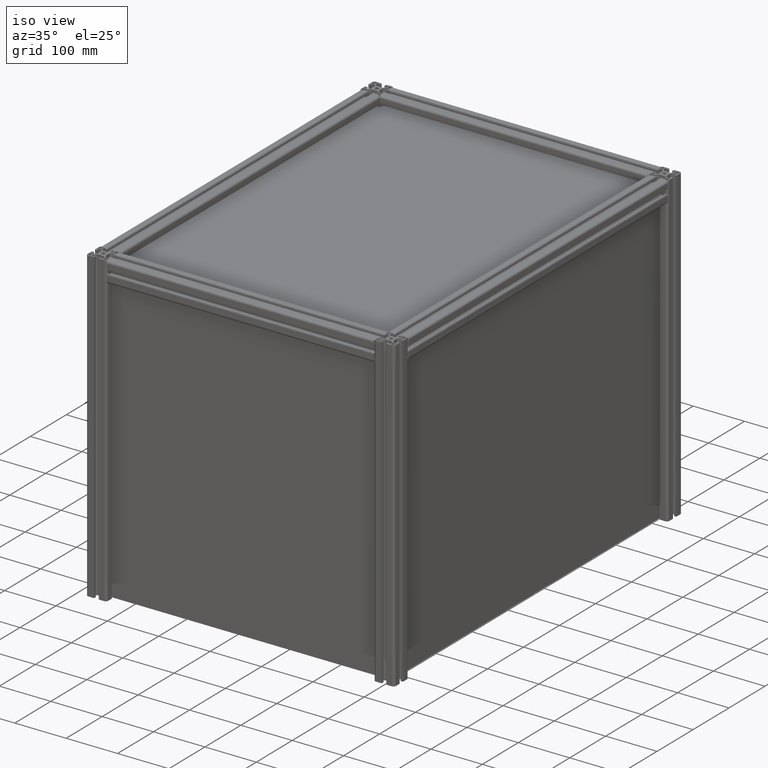
[diagram: clean part render]
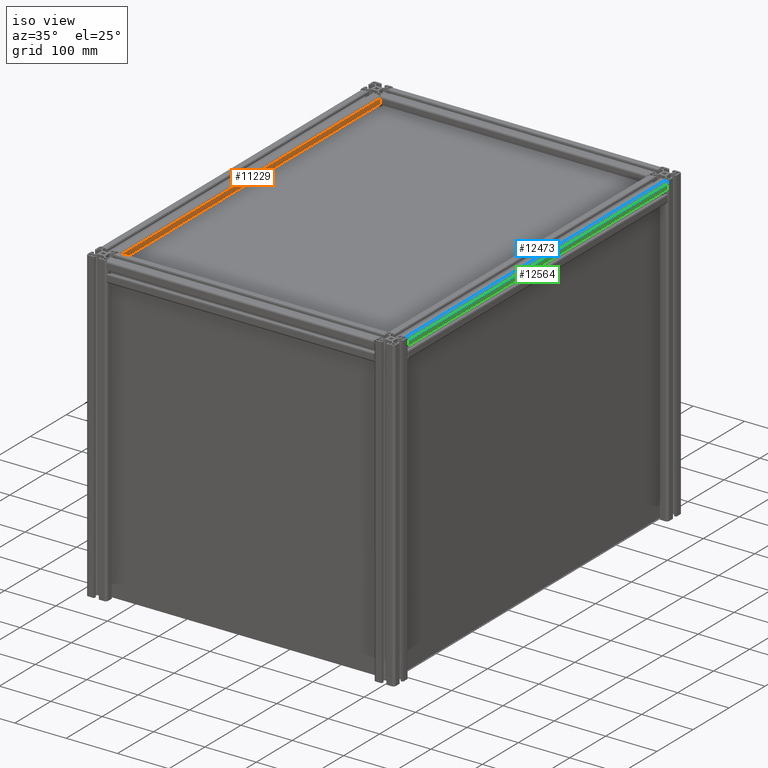
[diagram: same view with three faces highlighted in distinct colors, each labeled with its STEP entity id]
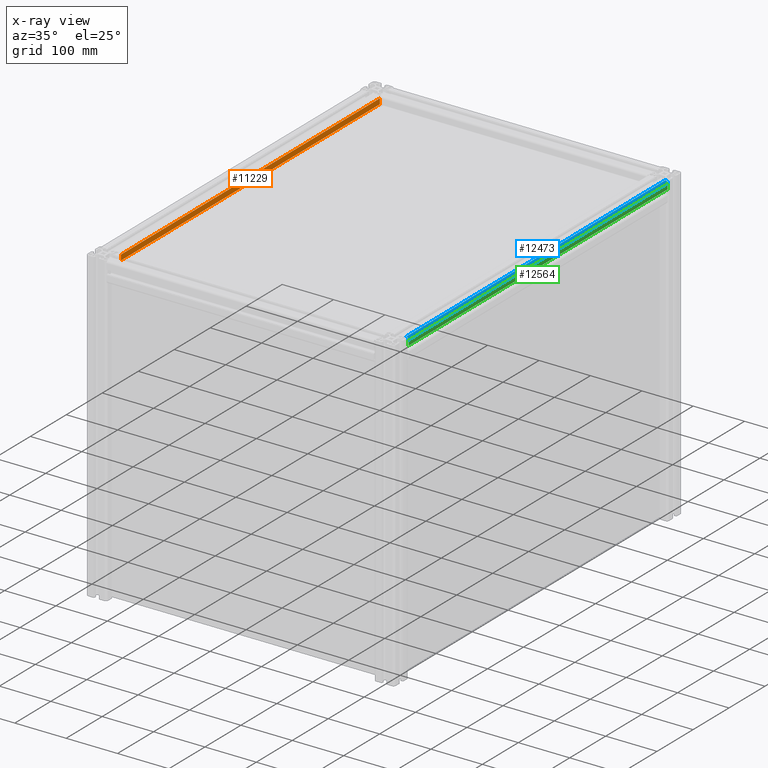
[diagram: x-ray of the same camera — body ghosted, the three highlighted faces saturated]
A machine part, iso view with three faces highlighted in distinct colors.
The next image is the same camera in x-ray (body ghosted, the three faces saturated) — at least one of them is partly hidden behind the body in this view.
Their STEP definitions:

[orange] entity #11229 — the highlighted planar face has unit normal (-1, -0, 0).
#1404 = EDGE_CURVE ( 'NONE', #4819, #8894, #10510, .T. ) ;
#1636 = CARTESIAN_POINT ( 'NONE',  ( 15.50000000000000000, -19.99999999999818101, 0.0000000000000000000 ) ) ;
#1683 = EDGE_CURVE ( 'NONE', #8475, #4819, #10493, .T. ) ;
#1687 = DIRECTION ( 'NONE',  ( 1.000000000000000000, 0.0000000000000000000, -0.0000000000000000000 ) ) ;
#1766 = CARTESIAN_POINT ( 'NONE',  ( 5.100000000000363798, -19.99999999999818101, 0.0000000000000000000 ) ) ;
#1852 = ORIENTED_EDGE ( 'NONE', *, *, #1404, .F. ) ;
#2353 = VECTOR ( 'NONE', #13817, 1000.000000000000000 ) ;
#2713 = PLANE ( 'NONE',  #3484 ) ;
#3182 = CARTESIAN_POINT ( 'NONE',  ( 5.100000000000364686, -19.99999999999818101, 0.0000000000000000000 ) ) ;
#3477 = CARTESIAN_POINT ( 'NONE',  ( 5.100000000000364686, -19.99999999999818456, 720.0000000000000000 ) ) ;
#3484 = AXIS2_PLACEMENT_3D ( 'NONE', #6431, #4820, #13788 ) ;
#3870 = CARTESIAN_POINT ( 'NONE',  ( 15.50000000000000000, -19.99999999999818101, 720.0000000000000000 ) ) ;
#4346 = DIRECTION ( 'NONE',  ( 1.000000000000000000, 0.0000000000000000000, -0.0000000000000000000 ) ) ;
#4819 = VERTEX_POINT ( 'NONE', #3477 ) ;
#4820 = DIRECTION ( 'NONE',  ( 0.0000000000000000000, 1.000000000000000000, 0.0000000000000000000 ) ) ;
#5358 = VERTEX_POINT ( 'NONE', #1636 ) ;
#5397 = VECTOR ( 'NONE', #7648, 1000.000000000000000 ) ;
#6431 = CARTESIAN_POINT ( 'NONE',  ( 5.100000000000363798, -19.99999999999818101, 720.0000000000000000 ) ) ;
#7094 = ORIENTED_EDGE ( 'NONE', *, *, #10478, .T. ) ;
#7216 = VECTOR ( 'NONE', #4346, 1000.000000000000000 ) ;
#7648 = DIRECTION ( 'NONE',  ( 0.0000000000000000000, -0.0000000000000000000, 1.000000000000000000 ) ) ;
#8117 = VECTOR ( 'NONE', #1687, 1000.000000000000000 ) ;
#8475 = VERTEX_POINT ( 'NONE', #3182 ) ;
#8852 = FACE_OUTER_BOUND ( 'NONE', #13148, .T. ) ;
#8894 = VERTEX_POINT ( 'NONE', #10539 ) ;
#8936 = CARTESIAN_POINT ( 'NONE',  ( 5.100000000000364686, -19.99999999999818101, 720.0000000000000000 ) ) ;
#10478 = EDGE_CURVE ( 'NONE', #8475, #5358, #13011, .T. ) ;
#10493 = LINE ( 'NONE', #8936, #5397 ) ;
#10510 = LINE ( 'NONE', #15437, #7216 ) ;
#10539 = CARTESIAN_POINT ( 'NONE',  ( 15.50000000000000000, -19.99999999999818456, 720.0000000000000000 ) ) ;
#11229 = ADVANCED_FACE ( 'NONE', ( #8852 ), #2713, .F. ) ;
#12996 = ORIENTED_EDGE ( 'NONE', *, *, #15223, .F. ) ;
#13011 = LINE ( 'NONE', #1766, #8117 ) ;
#13148 = EDGE_LOOP ( 'NONE', ( #1852, #13627, #7094, #12996 ) ) ;
#13627 = ORIENTED_EDGE ( 'NONE', *, *, #1683, .F. ) ;
#13788 = DIRECTION ( 'NONE',  ( 0.0000000000000000000, -0.0000000000000000000, 1.000000000000000000 ) ) ;
#13817 = DIRECTION ( 'NONE',  ( -0.0000000000000000000, -0.0000000000000000000, -1.000000000000000000 ) ) ;
#14956 = LINE ( 'NONE', #3870, #2353 ) ;
#15223 = EDGE_CURVE ( 'NONE', #8894, #5358, #14956, .T. ) ;
#15437 = CARTESIAN_POINT ( 'NONE',  ( -9.799999999999270628, -19.99999999999818456, 720.0000000000000000 ) ) ;

[blue] entity #12473 — the highlighted cylindrical surface (edge-blend (fillet) strip) has radius 4.5 mm, axis along (-0, -1, -0).
#8 = VERTEX_POINT ( 'NONE', #8706 ) ;
#1118 = DIRECTION ( 'NONE',  ( -1.000000000000000000, 0.0000000000000000000, 0.0000000000000000000 ) ) ;
#1368 = CIRCLE ( 'NONE', #13005, 4.500000000000000888 ) ;
#1919 = EDGE_LOOP ( 'NONE', ( #13986, #10423, #2729, #2842 ) ) ;
#2054 = LINE ( 'NONE', #3197, #3390 ) ;
#2729 = ORIENTED_EDGE ( 'NONE', *, *, #9349, .F. ) ;
#2842 = ORIENTED_EDGE ( 'NONE', *, *, #6849, .T. ) ;
#3197 = CARTESIAN_POINT ( 'NONE',  ( 20.00000000000000000, 15.50000000000181899, 720.0000000000000000 ) ) ;
#3378 = DIRECTION ( 'NONE',  ( -1.000000000000000000, 0.0000000000000000000, 0.0000000000000000000 ) ) ;
#3390 = VECTOR ( 'NONE', #9431, 1000.000000000000000 ) ;
#3425 = AXIS2_PLACEMENT_3D ( 'NONE', #8743, #9891, #6326 ) ;
#3444 = EDGE_CURVE ( 'NONE', #8, #15094, #10788, .T. ) ;
#3724 = CARTESIAN_POINT ( 'NONE',  ( 20.00000000000000000, 15.50000000000182077, 0.0000000000000000000 ) ) ;
#5527 = AXIS2_PLACEMENT_3D ( 'NONE', #10931, #13424, #1118 ) ;
#5827 = CARTESIAN_POINT ( 'NONE',  ( 15.50000000000000000, 20.00000000000181899, 720.0000000000000000 ) ) ;
#6326 = DIRECTION ( 'NONE',  ( -1.000000000000000000, 0.0000000000000000000, 0.0000000000000000000 ) ) ;
#6849 = EDGE_CURVE ( 'NONE', #11422, #12550, #2054, .T. ) ;
#6994 = CARTESIAN_POINT ( 'NONE',  ( 20.00000000000000000, 15.50000000000181899, 720.0000000000000000 ) ) ;
#7205 = FACE_OUTER_BOUND ( 'NONE', #1919, .T. ) ;
#8494 = CYLINDRICAL_SURFACE ( 'NONE', #5527, 4.500000000000000888 ) ;
#8706 = CARTESIAN_POINT ( 'NONE',  ( 15.50000000000000000, 20.00000000000181899, 0.0000000000000000000 ) ) ;
#8743 = CARTESIAN_POINT ( 'NONE',  ( 15.50000000000000000, 15.50000000000181899, 720.0000000000000000 ) ) ;
#9349 = EDGE_CURVE ( 'NONE', #11422, #15094, #12192, .T. ) ;
#9431 = DIRECTION ( 'NONE',  ( -0.0000000000000000000, -0.0000000000000000000, -1.000000000000000000 ) ) ;
#9458 = EDGE_CURVE ( 'NONE', #12550, #8, #1368, .T. ) ;
#9610 = CARTESIAN_POINT ( 'NONE',  ( 15.50000000000000000, 15.50000000000181899, 0.0000000000000000000 ) ) ;
#9673 = VECTOR ( 'NONE', #15558, 1000.000000000000000 ) ;
#9696 = DIRECTION ( 'NONE',  ( 0.0000000000000000000, 0.0000000000000000000, 1.000000000000000000 ) ) ;
#9891 = DIRECTION ( 'NONE',  ( 0.0000000000000000000, 0.0000000000000000000, 1.000000000000000000 ) ) ;
#10423 = ORIENTED_EDGE ( 'NONE', *, *, #3444, .T. ) ;
#10788 = LINE ( 'NONE', #14342, #9673 ) ;
#10931 = CARTESIAN_POINT ( 'NONE',  ( 15.50000000000000000, 15.50000000000181899, 720.0000000000000000 ) ) ;
#11422 = VERTEX_POINT ( 'NONE', #6994 ) ;
#12192 = CIRCLE ( 'NONE', #3425, 4.500000000000000888 ) ;
#12473 = ADVANCED_FACE ( 'NONE', ( #7205 ), #8494, .T. ) ;
#12550 = VERTEX_POINT ( 'NONE', #3724 ) ;
#13005 = AXIS2_PLACEMENT_3D ( 'NONE', #9610, #9696, #3378 ) ;
#13424 = DIRECTION ( 'NONE',  ( -0.0000000000000000000, -0.0000000000000000000, -1.000000000000000000 ) ) ;
#13986 = ORIENTED_EDGE ( 'NONE', *, *, #9458, .T. ) ;
#14342 = CARTESIAN_POINT ( 'NONE',  ( 15.50000000000000000, 20.00000000000181899, 720.0000000000000000 ) ) ;
#15094 = VERTEX_POINT ( 'NONE', #5827 ) ;
#15558 = DIRECTION ( 'NONE',  ( -0.0000000000000000000, 0.0000000000000000000, 1.000000000000000000 ) ) ;

[green] entity #12564 — the highlighted planar face has unit normal (-1, 0, -0).
#8 = VERTEX_POINT ( 'NONE', #8706 ) ;
#1646 = AXIS2_PLACEMENT_3D ( 'NONE', #5010, #10037, #14966 ) ;
#2188 = LINE ( 'NONE', #15714, #12017 ) ;
#2793 = CARTESIAN_POINT ( 'NONE',  ( 5.100000000000363798, 20.00000000000181899, 720.0000000000000000 ) ) ;
#2870 = VECTOR ( 'NONE', #9511, 1000.000000000000000 ) ;
#2987 = EDGE_CURVE ( 'NONE', #6114, #3170, #13875, .T. ) ;
#3084 = ORIENTED_EDGE ( 'NONE', *, *, #5154, .F. ) ;
#3170 = VERTEX_POINT ( 'NONE', #15901 ) ;
#3444 = EDGE_CURVE ( 'NONE', #8, #15094, #10788, .T. ) ;
#3712 = CARTESIAN_POINT ( 'NONE',  ( 5.100000000000364686, 20.00000000000181899, 0.0000000000000000000 ) ) ;
#4402 = LINE ( 'NONE', #5779, #2870 ) ;
#4780 = DIRECTION ( 'NONE',  ( -1.000000000000000000, -0.0000000000000000000, -0.0000000000000000000 ) ) ;
#5010 = CARTESIAN_POINT ( 'NONE',  ( 15.50000000000000000, 20.00000000000181899, 720.0000000000000000 ) ) ;
#5154 = EDGE_CURVE ( 'NONE', #15094, #3170, #4402, .T. ) ;
#5779 = CARTESIAN_POINT ( 'NONE',  ( -9.799999999999270628, 20.00000000000181899, 720.0000000000000000 ) ) ;
#5827 = CARTESIAN_POINT ( 'NONE',  ( 15.50000000000000000, 20.00000000000181899, 720.0000000000000000 ) ) ;
#6114 = VERTEX_POINT ( 'NONE', #3712 ) ;
#6147 = PLANE ( 'NONE',  #1646 ) ;
#6468 = ORIENTED_EDGE ( 'NONE', *, *, #13519, .T. ) ;
#7403 = ORIENTED_EDGE ( 'NONE', *, *, #2987, .T. ) ;
#7519 = FACE_OUTER_BOUND ( 'NONE', #14736, .T. ) ;
#7944 = ORIENTED_EDGE ( 'NONE', *, *, #3444, .F. ) ;
#8706 = CARTESIAN_POINT ( 'NONE',  ( 15.50000000000000000, 20.00000000000181899, 0.0000000000000000000 ) ) ;
#9511 = DIRECTION ( 'NONE',  ( -1.000000000000000000, -0.0000000000000000000, 0.0000000000000000000 ) ) ;
#9673 = VECTOR ( 'NONE', #15558, 1000.000000000000000 ) ;
#10037 = DIRECTION ( 'NONE',  ( 0.0000000000000000000, -1.000000000000000000, 0.0000000000000000000 ) ) ;
#10728 = VECTOR ( 'NONE', #15173, 1000.000000000000000 ) ;
#10788 = LINE ( 'NONE', #14342, #9673 ) ;
#12017 = VECTOR ( 'NONE', #4780, 1000.000000000000000 ) ;
#12564 = ADVANCED_FACE ( 'NONE', ( #7519 ), #6147, .F. ) ;
#13519 = EDGE_CURVE ( 'NONE', #8, #6114, #2188, .T. ) ;
#13875 = LINE ( 'NONE', #2793, #10728 ) ;
#14342 = CARTESIAN_POINT ( 'NONE',  ( 15.50000000000000000, 20.00000000000181899, 720.0000000000000000 ) ) ;
#14736 = EDGE_LOOP ( 'NONE', ( #3084, #7944, #6468, #7403 ) ) ;
#14966 = DIRECTION ( 'NONE',  ( 0.0000000000000000000, -0.0000000000000000000, -1.000000000000000000 ) ) ;
#15094 = VERTEX_POINT ( 'NONE', #5827 ) ;
#15173 = DIRECTION ( 'NONE',  ( 0.0000000000000000000, -0.0000000000000000000, 1.000000000000000000 ) ) ;
#15558 = DIRECTION ( 'NONE',  ( -0.0000000000000000000, 0.0000000000000000000, 1.000000000000000000 ) ) ;
#15714 = CARTESIAN_POINT ( 'NONE',  ( 15.50000000000000000, 20.00000000000181899, 0.0000000000000000000 ) ) ;
#15901 = CARTESIAN_POINT ( 'NONE',  ( 5.100000000000364686, 20.00000000000181899, 720.0000000000000000 ) ) ;